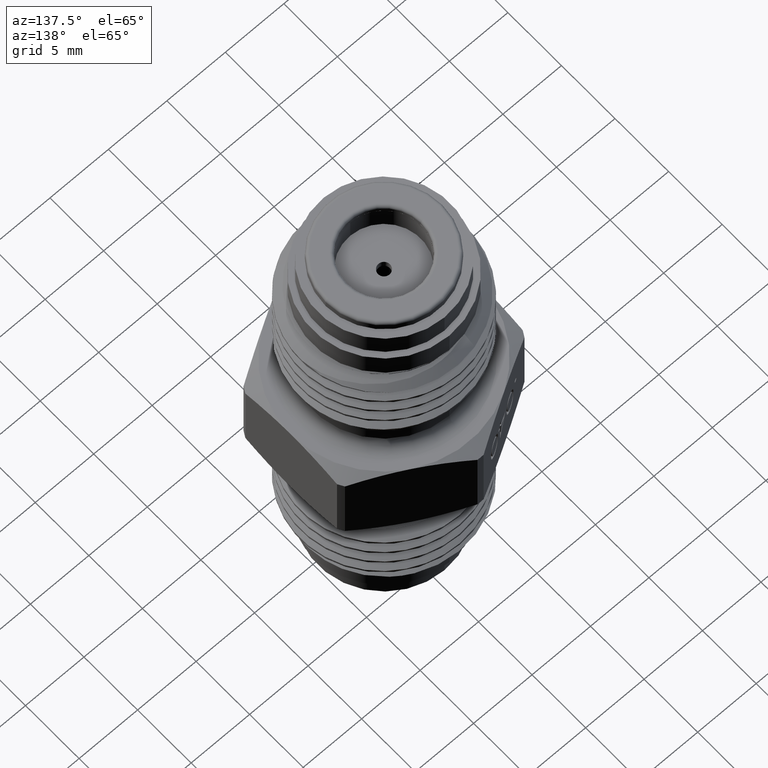
[diagram: clean part render]
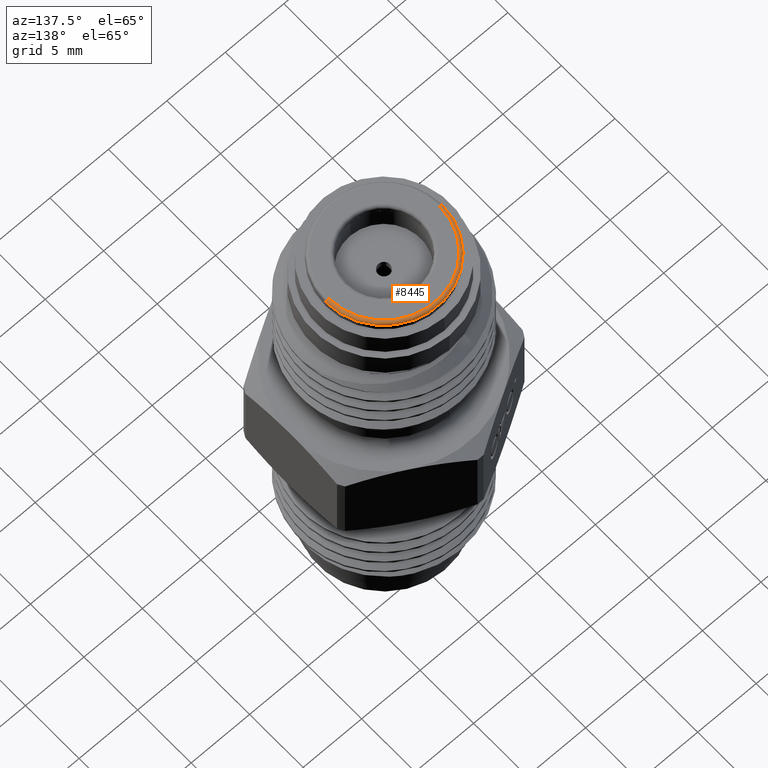
[diagram: same view with one face highlighted and labeled with its STEP entity id]
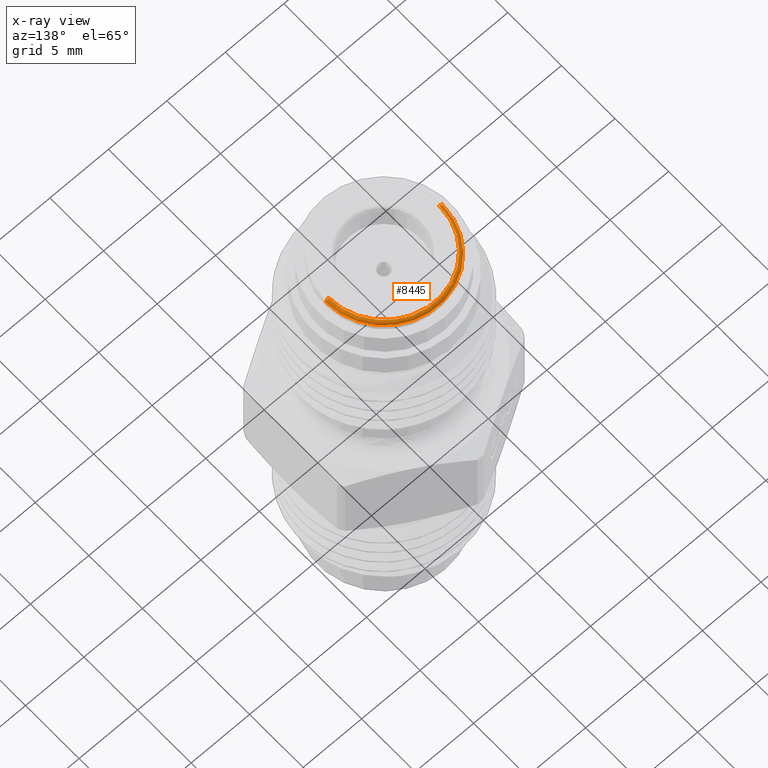
[diagram: x-ray of the same camera — body ghosted, the highlighted face saturated]
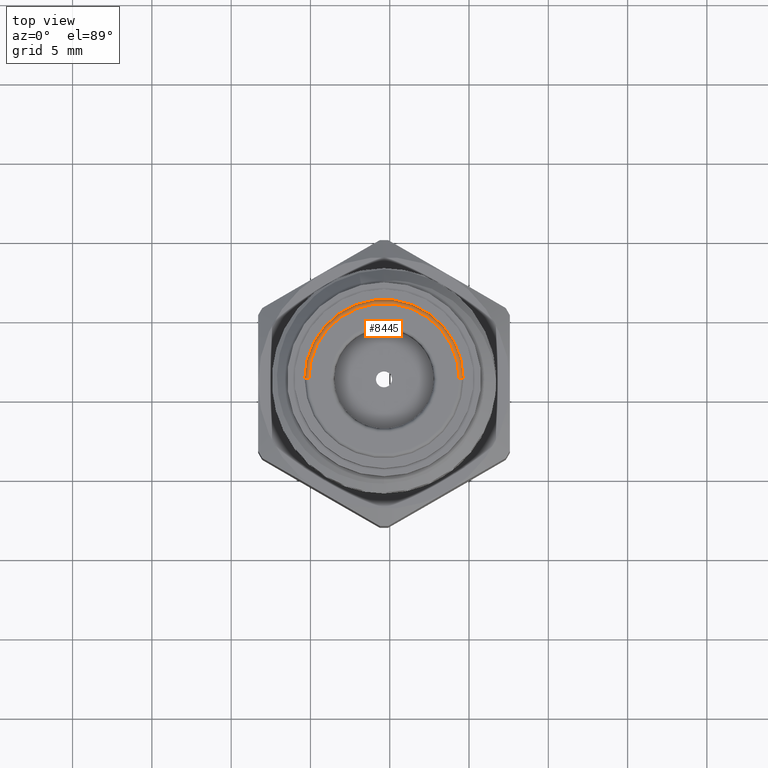
[diagram: same view with one face highlighted and labeled with its STEP entity id]
A machine part, auxiliary view. The second image highlights one B-rep face of the part: STEP entity #8445.
The next image is the same camera in x-ray: the body ghosted, the highlighted face saturated — about 0% of this face is hidden behind the body in this view.
A second angle (top view) of the same face is appended — the face is thin or edge-on in the first view.
In plain terms, the highlighted toroidal blend (fillet) surface has major radius 4.7372 mm and minor (blend) radius 0.254 mm.
Its self-contained STEP definition (entity closure, byte-faithful):
#37 = AXIS2_PLACEMENT_3D ( 'NONE', #13440, #11310, #7121 ) ;
#235 = CARTESIAN_POINT ( 'NONE',  ( 0.000000000000000000, 0.000000000000000000, 1.540041255883286997 ) ) ;
#243 = EDGE_CURVE ( 'NONE', #9957, #1451, #9237, .T. ) ;
#249 = DIRECTION ( 'NONE',  ( -1.000000000000000000, 0.000000000000000000, 0.000000000000000000 ) ) ;
#378 = CIRCLE ( 'NONE', #11227, 0.009999999999999892655 ) ;
#434 = EDGE_LOOP ( 'NONE', ( #3277, #6844, #7159, #2350 ) ) ;
#628 = AXIS2_PLACEMENT_3D ( 'NONE', #5055, #9352, #901 ) ;
#901 = DIRECTION ( 'NONE',  ( -1.000000000000000000, 0.000000000000000000, 0.000000000000000000 ) ) ;
#970 = CARTESIAN_POINT ( 'NONE',  ( -0.1865022397793743292, 0.000000000000000000, 1.540041255883286997 ) ) ;
#1297 = DIRECTION ( 'NONE',  ( -0.000000000000000000, -0.000000000000000000, -1.000000000000000000 ) ) ;
#1451 = VERTEX_POINT ( 'NONE', #4630 ) ;
#1575 = FACE_OUTER_BOUND ( 'NONE', #434, .T. ) ;
#2350 = ORIENTED_EDGE ( 'NONE', *, *, #3494, .F. ) ;
#3277 = ORIENTED_EDGE ( 'NONE', *, *, #7315, .T. ) ;
#3494 = EDGE_CURVE ( 'NONE', #12407, #9957, #378, .T. ) ;
#3780 = CARTESIAN_POINT ( 'NONE',  ( -0.1865022397793742459, 0.000000000000000000, 1.550041255883286784 ) ) ;
#4077 = CIRCLE ( 'NONE', #628, 0.1865022397793742459 ) ;
#4630 = CARTESIAN_POINT ( 'NONE',  ( 0.1965022397793742548, 2.406458389710964474E-17, 1.540041255883286553 ) ) ;
#5055 = CARTESIAN_POINT ( 'NONE',  ( 0.000000000000000000, 0.000000000000000000, 1.550041255883286784 ) ) ;
#5118 = AXIS2_PLACEMENT_3D ( 'NONE', #9607, #10663, #249 ) ;
#5192 = CARTESIAN_POINT ( 'NONE',  ( -0.1965022397793742548, 0.000000000000000000, 1.540041255883286553 ) ) ;
#6844 = ORIENTED_EDGE ( 'NONE', *, *, #9310, .T. ) ;
#7121 = DIRECTION ( 'NONE',  ( -1.000000000000000000, -1.224646799147355426E-16, 0.000000000000000000 ) ) ;
#7159 = ORIENTED_EDGE ( 'NONE', *, *, #243, .F. ) ;
#7315 = EDGE_CURVE ( 'NONE', #12407, #9202, #4077, .T. ) ;
#7506 = DIRECTION ( 'NONE',  ( 0.000000000000000000, -1.000000000000000000, 0.000000000000000000 ) ) ;
#8037 = TOROIDAL_SURFACE ( 'NONE', #8815, 0.1865022397793743292, 0.009999999999999944697 ) ;
#8335 = CIRCLE ( 'NONE', #37, 0.009999999999999927350 ) ;
#8445 = ADVANCED_FACE ( 'NONE', ( #1575 ), #8037, .T. ) ;
#8815 = AXIS2_PLACEMENT_3D ( 'NONE', #235, #1297, #10647 ) ;
#9202 = VERTEX_POINT ( 'NONE', #10207 ) ;
#9237 = CIRCLE ( 'NONE', #5118, 0.1965022397793742548 ) ;
#9310 = EDGE_CURVE ( 'NONE', #9202, #1451, #8335, .T. ) ;
#9352 = DIRECTION ( 'NONE',  ( -0.000000000000000000, -0.000000000000000000, -1.000000000000000000 ) ) ;
#9513 = DIRECTION ( 'NONE',  ( 0.000000000000000000, 0.000000000000000000, -1.000000000000000000 ) ) ;
#9607 = CARTESIAN_POINT ( 'NONE',  ( 0.000000000000000000, 0.000000000000000000, 1.540041255883286553 ) ) ;
#9957 = VERTEX_POINT ( 'NONE', #5192 ) ;
#10207 = CARTESIAN_POINT ( 'NONE',  ( 0.1865022397793742459, 2.345226049753596333E-17, 1.550041255883286784 ) ) ;
#10647 = DIRECTION ( 'NONE',  ( -1.000000000000000000, 0.000000000000000000, 0.000000000000000000 ) ) ;
#10663 = DIRECTION ( 'NONE',  ( -0.000000000000000000, -0.000000000000000000, -1.000000000000000000 ) ) ;
#11227 = AXIS2_PLACEMENT_3D ( 'NONE', #970, #7506, #9513 ) ;
#11310 = DIRECTION ( 'NONE',  ( -1.224646799147353207E-16, 1.000000000000000000, 0.000000000000000000 ) ) ;
#12407 = VERTEX_POINT ( 'NONE', #3780 ) ;
#13440 = CARTESIAN_POINT ( 'NONE',  ( 0.1865022397793743292, 2.283993709796229424E-17, 1.540041255883286997 ) ) ;